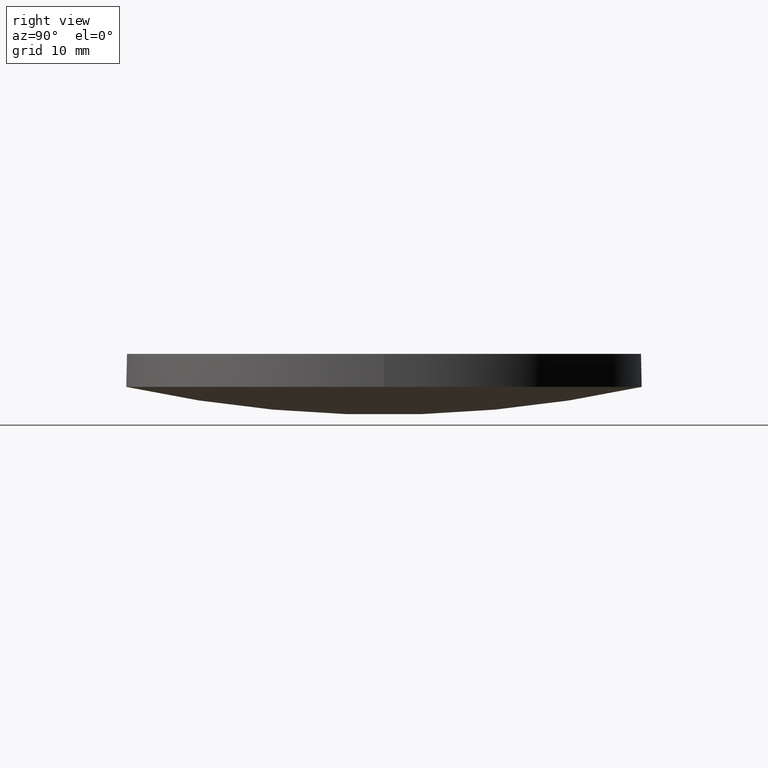
[diagram: clean part render]
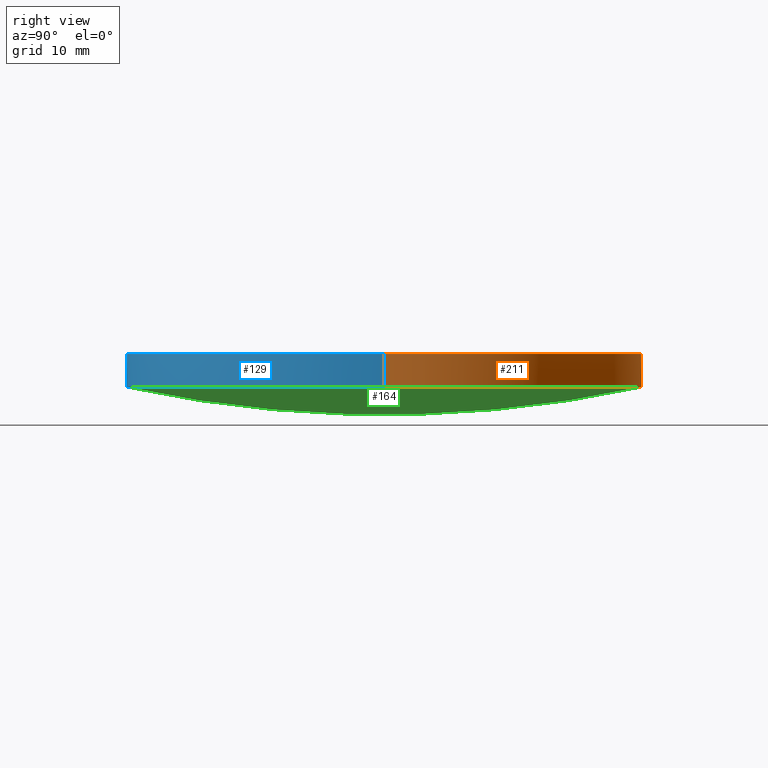
[diagram: same view with three faces highlighted in distinct colors, each labeled with its STEP entity id]
A machine part, right view with three faces highlighted in distinct colors.
Their STEP definitions:

[orange] entity #211 — the highlighted cylindrical surface (partial cylindrical patch) has radius 25.4 mm, axis along (0, 0, 1).
#1 = EDGE_CURVE ( 'NONE', #216, #8, #36, .T. ) ;
#4 = AXIS2_PLACEMENT_3D ( 'NONE', #61, #170, #99 ) ;
#5 = CIRCLE ( 'NONE', #54, 25.39999999999999900 ) ;
#6 = DIRECTION ( 'NONE',  ( 0.0000000000000000000, 0.0000000000000000000, 1.000000000000000000 ) ) ;
#8 = VERTEX_POINT ( 'NONE', #196 ) ;
#10 = EDGE_CURVE ( 'NONE', #226, #216, #136, .T. ) ;
#13 = ORIENTED_EDGE ( 'NONE', *, *, #180, .F. ) ;
#16 = DIRECTION ( 'NONE',  ( -0.0000000000000000000, -0.0000000000000000000, -1.000000000000000000 ) ) ;
#21 = ORIENTED_EDGE ( 'NONE', *, *, #220, .F. ) ;
#32 = CARTESIAN_POINT ( 'NONE',  ( 25.39999999999999900, 4.884981308350691100E-015, 2.742355090084500200 ) ) ;
#34 = CARTESIAN_POINT ( 'NONE',  ( -25.39999999999999900, 7.995584178184967200E-015, 2.742355090084500200 ) ) ;
#36 = CIRCLE ( 'NONE', #4, 25.39999999999999900 ) ;
#40 = FACE_OUTER_BOUND ( 'NONE', #198, .T. ) ;
#43 = CARTESIAN_POINT ( 'NONE',  ( -25.39999999999999900, 7.995584178184967200E-015, 2.742355090084500200 ) ) ;
#54 = AXIS2_PLACEMENT_3D ( 'NONE', #159, #162, #140 ) ;
#58 = ORIENTED_EDGE ( 'NONE', *, *, #1, .T. ) ;
#61 = CARTESIAN_POINT ( 'NONE',  ( 9.992007221626412800E-016, 4.884981308350691100E-015, 6.000000000000000000 ) ) ;
#67 = CARTESIAN_POINT ( 'NONE',  ( 9.992007221626412800E-016, 4.884981308350691100E-015, 2.742355090084500200 ) ) ;
#71 = CARTESIAN_POINT ( 'NONE',  ( 25.39999999999999900, 4.884981308350691100E-015, 2.742355090084500200 ) ) ;
#73 = CYLINDRICAL_SURFACE ( 'NONE', #175, 25.39999999999999900 ) ;
#86 = ORIENTED_EDGE ( 'NONE', *, *, #231, .F. ) ;
#88 = DIRECTION ( 'NONE',  ( 1.000000000000000000, 0.0000000000000000000, 0.0000000000000000000 ) ) ;
#99 = DIRECTION ( 'NONE',  ( 1.000000000000000000, 0.0000000000000000000, 0.0000000000000000000 ) ) ;
#107 = CIRCLE ( 'NONE', #117, 25.39999999999999900 ) ;
#111 = VERTEX_POINT ( 'NONE', #152 ) ;
#117 = AXIS2_PLACEMENT_3D ( 'NONE', #229, #16, #228 ) ;
#134 = ORIENTED_EDGE ( 'NONE', *, *, #10, .T. ) ;
#136 = LINE ( 'NONE', #43, #141 ) ;
#140 = DIRECTION ( 'NONE',  ( 1.000000000000000000, 8.881784197001252300E-016, 0.0000000000000000000 ) ) ;
#141 = VECTOR ( 'NONE', #6, 1000.000000000000000 ) ;
#152 = CARTESIAN_POINT ( 'NONE',  ( 1.806128859801101300E-014, 25.39999999999994900, 2.742355090084492200 ) ) ;
#157 = DIRECTION ( 'NONE',  ( 0.0000000000000000000, 0.0000000000000000000, 1.000000000000000000 ) ) ;
#159 = CARTESIAN_POINT ( 'NONE',  ( 9.992007221626412800E-016, 4.884981308350691100E-015, 2.742355090084500200 ) ) ;
#162 = DIRECTION ( 'NONE',  ( -0.0000000000000000000, -0.0000000000000000000, -1.000000000000000000 ) ) ;
#170 = DIRECTION ( 'NONE',  ( -0.0000000000000000000, -0.0000000000000000000, -1.000000000000000000 ) ) ;
#175 = AXIS2_PLACEMENT_3D ( 'NONE', #67, #190, #88 ) ;
#179 = LINE ( 'NONE', #32, #215 ) ;
#180 = EDGE_CURVE ( 'NONE', #234, #8, #179, .T. ) ;
#190 = DIRECTION ( 'NONE',  ( 0.0000000000000000000, 0.0000000000000000000, 1.000000000000000000 ) ) ;
#196 = CARTESIAN_POINT ( 'NONE',  ( 25.39999999999999900, 4.884981308350691100E-015, 6.000000000000000000 ) ) ;
#198 = EDGE_LOOP ( 'NONE', ( #86, #134, #58, #13, #21 ) ) ;
#206 = CARTESIAN_POINT ( 'NONE',  ( -25.39999999999999900, 7.995584178184967200E-015, 6.000000000000000000 ) ) ;
#211 = ADVANCED_FACE ( 'NONE', ( #40 ), #73, .T. ) ;
#215 = VECTOR ( 'NONE', #157, 1000.000000000000000 ) ;
#216 = VERTEX_POINT ( 'NONE', #206 ) ;
#220 = EDGE_CURVE ( 'NONE', #111, #234, #5, .T. ) ;
#226 = VERTEX_POINT ( 'NONE', #34 ) ;
#228 = DIRECTION ( 'NONE',  ( 1.000000000000000000, 0.0000000000000000000, 0.0000000000000000000 ) ) ;
#229 = CARTESIAN_POINT ( 'NONE',  ( 9.992007221626412800E-016, 4.884981308350691100E-015, 2.742355090084500200 ) ) ;
#231 = EDGE_CURVE ( 'NONE', #226, #111, #107, .T. ) ;
#234 = VERTEX_POINT ( 'NONE', #71 ) ;

[blue] entity #129 — the highlighted cylindrical surface (partial cylindrical patch) has radius 25.4 mm, axis along (0, 0, 1).
#2 = CYLINDRICAL_SURFACE ( 'NONE', #87, 25.39999999999999900 ) ;
#3 = CARTESIAN_POINT ( 'NONE',  ( 9.992007221626412800E-016, 4.884981308350691100E-015, 2.742355090084500200 ) ) ;
#6 = DIRECTION ( 'NONE',  ( 0.0000000000000000000, 0.0000000000000000000, 1.000000000000000000 ) ) ;
#8 = VERTEX_POINT ( 'NONE', #196 ) ;
#10 = EDGE_CURVE ( 'NONE', #226, #216, #136, .T. ) ;
#18 = EDGE_CURVE ( 'NONE', #234, #57, #101, .T. ) ;
#24 = DIRECTION ( 'NONE',  ( 1.000000000000000000, 0.0000000000000000000, 0.0000000000000000000 ) ) ;
#28 = EDGE_CURVE ( 'NONE', #8, #216, #230, .T. ) ;
#32 = CARTESIAN_POINT ( 'NONE',  ( 25.39999999999999900, 4.884981308350691100E-015, 2.742355090084500200 ) ) ;
#34 = CARTESIAN_POINT ( 'NONE',  ( -25.39999999999999900, 7.995584178184967200E-015, 2.742355090084500200 ) ) ;
#35 = AXIS2_PLACEMENT_3D ( 'NONE', #185, #219, #100 ) ;
#42 = AXIS2_PLACEMENT_3D ( 'NONE', #3, #81, #24 ) ;
#43 = CARTESIAN_POINT ( 'NONE',  ( -25.39999999999999900, 7.995584178184967200E-015, 2.742355090084500200 ) ) ;
#46 = DIRECTION ( 'NONE',  ( 1.000000000000000000, 0.0000000000000000000, 0.0000000000000000000 ) ) ;
#53 = ORIENTED_EDGE ( 'NONE', *, *, #10, .F. ) ;
#57 = VERTEX_POINT ( 'NONE', #197 ) ;
#59 = AXIS2_PLACEMENT_3D ( 'NONE', #203, #84, #102 ) ;
#71 = CARTESIAN_POINT ( 'NONE',  ( 25.39999999999999900, 4.884981308350691100E-015, 2.742355090084500200 ) ) ;
#81 = DIRECTION ( 'NONE',  ( -0.0000000000000000000, -0.0000000000000000000, -1.000000000000000000 ) ) ;
#84 = DIRECTION ( 'NONE',  ( -0.0000000000000000000, -0.0000000000000000000, -1.000000000000000000 ) ) ;
#87 = AXIS2_PLACEMENT_3D ( 'NONE', #118, #151, #46 ) ;
#100 = DIRECTION ( 'NONE',  ( 1.000000000000000000, 0.0000000000000000000, 0.0000000000000000000 ) ) ;
#101 = CIRCLE ( 'NONE', #42, 25.39999999999999900 ) ;
#102 = DIRECTION ( 'NONE',  ( 1.000000000000000000, 0.0000000000000000000, 0.0000000000000000000 ) ) ;
#103 = ORIENTED_EDGE ( 'NONE', *, *, #28, .T. ) ;
#118 = CARTESIAN_POINT ( 'NONE',  ( 9.992007221626412800E-016, 4.884981308350691100E-015, 2.742355090084500200 ) ) ;
#119 = ORIENTED_EDGE ( 'NONE', *, *, #18, .F. ) ;
#129 = ADVANCED_FACE ( 'NONE', ( #213 ), #2, .T. ) ;
#136 = LINE ( 'NONE', #43, #141 ) ;
#141 = VECTOR ( 'NONE', #6, 1000.000000000000000 ) ;
#149 = ORIENTED_EDGE ( 'NONE', *, *, #194, .F. ) ;
#151 = DIRECTION ( 'NONE',  ( 0.0000000000000000000, 0.0000000000000000000, 1.000000000000000000 ) ) ;
#157 = DIRECTION ( 'NONE',  ( 0.0000000000000000000, 0.0000000000000000000, 1.000000000000000000 ) ) ;
#179 = LINE ( 'NONE', #32, #215 ) ;
#180 = EDGE_CURVE ( 'NONE', #234, #8, #179, .T. ) ;
#182 = EDGE_LOOP ( 'NONE', ( #53, #149, #119, #188, #103 ) ) ;
#185 = CARTESIAN_POINT ( 'NONE',  ( 9.992007221626412800E-016, 4.884981308350691100E-015, 6.000000000000000000 ) ) ;
#188 = ORIENTED_EDGE ( 'NONE', *, *, #180, .T. ) ;
#193 = CIRCLE ( 'NONE', #59, 25.39999999999999900 ) ;
#194 = EDGE_CURVE ( 'NONE', #57, #226, #193, .T. ) ;
#196 = CARTESIAN_POINT ( 'NONE',  ( 25.39999999999999900, 4.884981308350691100E-015, 6.000000000000000000 ) ) ;
#197 = CARTESIAN_POINT ( 'NONE',  ( 3.046612607853090000E-014, -25.39999999999992400, 2.742355090084498800 ) ) ;
#203 = CARTESIAN_POINT ( 'NONE',  ( 9.992007221626412800E-016, 4.884981308350691100E-015, 2.742355090084500200 ) ) ;
#206 = CARTESIAN_POINT ( 'NONE',  ( -25.39999999999999900, 7.995584178184967200E-015, 6.000000000000000000 ) ) ;
#213 = FACE_OUTER_BOUND ( 'NONE', #182, .T. ) ;
#215 = VECTOR ( 'NONE', #157, 1000.000000000000000 ) ;
#216 = VERTEX_POINT ( 'NONE', #206 ) ;
#219 = DIRECTION ( 'NONE',  ( -0.0000000000000000000, -0.0000000000000000000, -1.000000000000000000 ) ) ;
#226 = VERTEX_POINT ( 'NONE', #34 ) ;
#230 = CIRCLE ( 'NONE', #35, 25.39999999999999900 ) ;
#234 = VERTEX_POINT ( 'NONE', #71 ) ;

[green] entity #164 — the highlighted face is a freeform B-spline surface patch.
#3 = CARTESIAN_POINT ( 'NONE',  ( 9.992007221626412800E-016, 4.884981308350691100E-015, 2.742355090084500200 ) ) ;
#5 = CIRCLE ( 'NONE', #54, 25.39999999999999900 ) ;
#11 = CARTESIAN_POINT ( 'NONE',  ( 25.75422041972872500, 8.703598526910687000, 1.846348701694524100 ) ) ;
#18 = EDGE_CURVE ( 'NONE', #234, #57, #101, .T. ) ;
#19 = EDGE_LOOP ( 'NONE', ( #55, #97, #45 ) ) ;
#24 = DIRECTION ( 'NONE',  ( 1.000000000000000000, 0.0000000000000000000, 0.0000000000000000000 ) ) ;
#29 = CARTESIAN_POINT ( 'NONE',  ( 24.94706102982440800, 25.69999964640436100, 5.518044764160708700 ) ) ;
#30 = CARTESIAN_POINT ( 'NONE',  ( 2.625693991564199000E-014, -8.703598526910649700, -0.9510645303030325100 ) ) ;
#33 = CARTESIAN_POINT ( 'NONE',  ( 25.75422041972872800, -8.703598526910644400, 1.846348701694522600 ) ) ;
#42 = AXIS2_PLACEMENT_3D ( 'NONE', #3, #81, #24 ) ;
#45 = ORIENTED_EDGE ( 'NONE', *, *, #220, .T. ) ;
#47 = CARTESIAN_POINT ( 'NONE',  ( 8.669028249741140600, 8.703598526910683500, -0.9510645303030316200 ) ) ;
#48 = CARTESIAN_POINT ( 'NONE',  ( 17.28736506798853200, 8.703598526910685300, -0.01494419506242674000 ) ) ;
#49 = CARTESIAN_POINT ( 'NONE',  ( 8.397333458010448800, 25.69999964640436100, 2.808304865731413800 ) ) ;
#54 = AXIS2_PLACEMENT_3D ( 'NONE', #159, #162, #140 ) ;
#55 = ORIENTED_EDGE ( 'NONE', *, *, #18, .T. ) ;
#57 = VERTEX_POINT ( 'NONE', #197 ) ;
#64 = CARTESIAN_POINT ( 'NONE',  ( 1.799039049072755500E-014, 25.69999964640435800, 2.808304865731414700 ) ) ;
#71 = CARTESIAN_POINT ( 'NONE',  ( 25.39999999999999900, 4.884981308350691100E-015, 2.742355090084500200 ) ) ;
#81 = DIRECTION ( 'NONE',  ( -0.0000000000000000000, -0.0000000000000000000, -1.000000000000000000 ) ) ;
#89 = CARTESIAN_POINT ( 'NONE',  ( 2.842170943040400100E-014, 2.131628207280299900E-014, 119.0000000000000100 ) ) ;
#97 = ORIENTED_EDGE ( 'NONE', *, *, #210, .T. ) ;
#101 = CIRCLE ( 'NONE', #42, 25.39999999999999900 ) ;
#105 = CARTESIAN_POINT ( 'NONE',  ( 3.054174162706871200E-014, -25.69999964640432600, 2.808304865731414700 ) ) ;
#106 = CARTESIAN_POINT ( 'NONE',  ( 17.28736506798853200, -8.703598526910644400, -0.01494419506242804200 ) ) ;
#111 = VERTEX_POINT ( 'NONE', #152 ) ;
#120 = CARTESIAN_POINT ( 'NONE',  ( 2.200628144233413800E-014, 8.703598526910681700, -0.9510645303030310600 ) ) ;
#140 = DIRECTION ( 'NONE',  ( 1.000000000000000000, 8.881784197001252300E-016, 0.0000000000000000000 ) ) ;
#145 =( BOUNDED_SURFACE ( )  B_SPLINE_SURFACE ( 3, 3, ( 
 ( #105, #200, #156, #222 ),
 ( #30, #201, #106, #33 ),
 ( #120, #47, #48, #11 ),
 ( #64, #49, #189, #29 ) ),
 .UNSPECIFIED., .F., .F., .F. ) 
 B_SPLINE_SURFACE_WITH_KNOTS ( ( 4, 4 ),
 ( 4, 4 ),
 ( 0.0000000000000000000, 1.000000000000000000 ),
 ( 0.0000000000000000000, 1.000000000000000000 ),
 .UNSPECIFIED. ) 
 GEOMETRIC_REPRESENTATION_ITEM ( )  RATIONAL_B_SPLINE_SURFACE ( (
 ( 1.000000000000000000, 0.9961017213591968300, 0.9961017213591968300, 1.000000000000000000),
 ( 0.9842671996317566800, 0.9804302518305890700, 0.9804302518305890700, 0.9842671996317566800),
 ( 0.9842671996317566800, 0.9804302518305890700, 0.9804302518305890700, 0.9842671996317566800),
 ( 1.000000000000000000, 0.9961017213591968300, 0.9961017213591968300, 1.000000000000000000) ) ) 
 REPRESENTATION_ITEM ( '' )  SURFACE ( )  );
#146 = AXIS2_PLACEMENT_3D ( 'NONE', #89, #187, #223 ) ;
#152 = CARTESIAN_POINT ( 'NONE',  ( 1.806128859801101300E-014, 25.39999999999994900, 2.742355090084492200 ) ) ;
#156 = CARTESIAN_POINT ( 'NONE',  ( 16.74556419753229600, -25.69999964640432600, 3.715086385571843200 ) ) ;
#159 = CARTESIAN_POINT ( 'NONE',  ( 9.992007221626412800E-016, 4.884981308350691100E-015, 2.742355090084500200 ) ) ;
#162 = DIRECTION ( 'NONE',  ( -0.0000000000000000000, -0.0000000000000000000, -1.000000000000000000 ) ) ;
#163 = CIRCLE ( 'NONE', #146, 119.0000000000000000 ) ;
#164 = ADVANCED_FACE ( 'NONE', ( #184 ), #145, .T. ) ;
#184 = FACE_OUTER_BOUND ( 'NONE', #19, .T. ) ;
#187 = DIRECTION ( 'NONE',  ( 1.000000000000000000, 2.441897141834629800E-016, -3.576540790375509800E-017 ) ) ;
#189 = CARTESIAN_POINT ( 'NONE',  ( 16.74556419753228900, 25.69999964640436100, 3.715086385571844600 ) ) ;
#197 = CARTESIAN_POINT ( 'NONE',  ( 3.046612607853090000E-014, -25.39999999999992400, 2.742355090084498800 ) ) ;
#200 = CARTESIAN_POINT ( 'NONE',  ( 8.397333458010461300, -25.69999964640432600, 2.808304865731413800 ) ) ;
#201 = CARTESIAN_POINT ( 'NONE',  ( 8.669028249741145900, -8.703598526910646200, -0.9510645303030329500 ) ) ;
#210 = EDGE_CURVE ( 'NONE', #57, #111, #163, .T. ) ;
#220 = EDGE_CURVE ( 'NONE', #111, #234, #5, .T. ) ;
#222 = CARTESIAN_POINT ( 'NONE',  ( 24.94706102982441500, -25.69999964640432200, 5.518044764160706900 ) ) ;
#223 = DIRECTION ( 'NONE',  ( 2.441897141834630300E-016, -1.000000000000000000, -4.664802624475447800E-016 ) ) ;
#234 = VERTEX_POINT ( 'NONE', #71 ) ;